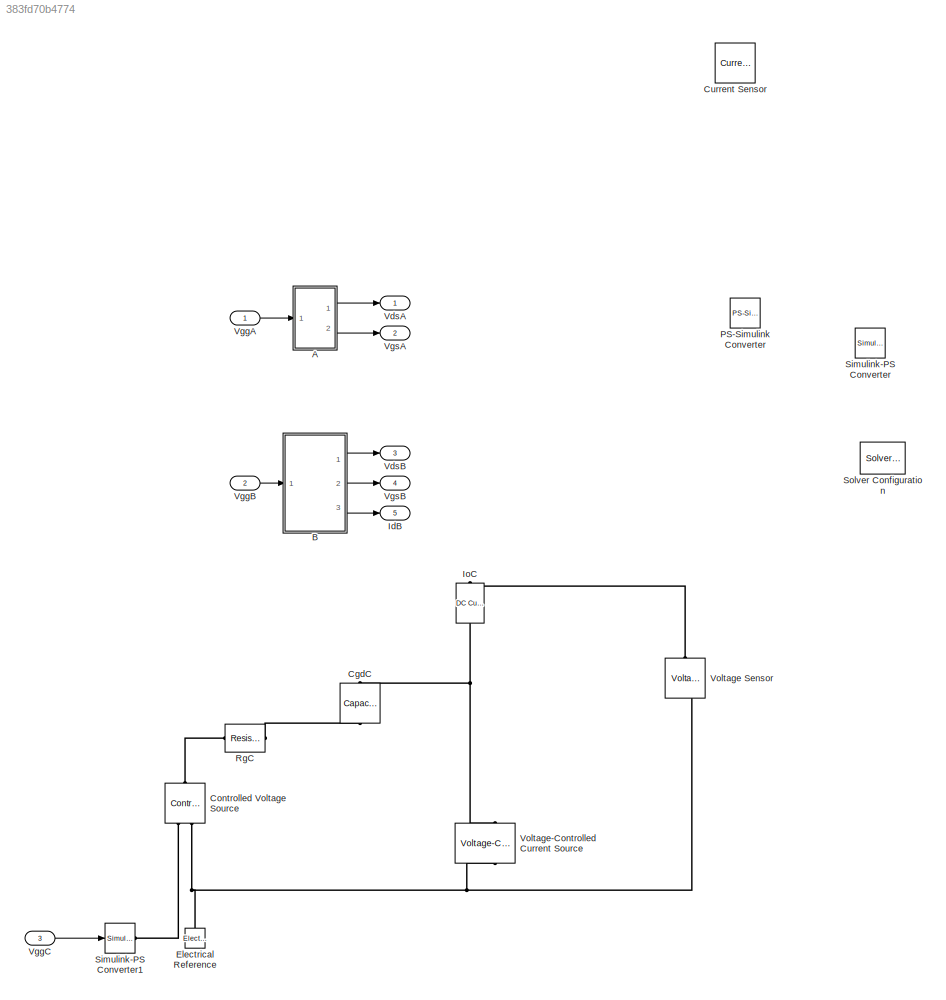
MODEL slx_383fd70b4774
KIND model
CONFIG AbsTol = auto
CONFIG FixedStep = auto
CONFIG MaxStep = auto
CONFIG MinStep = auto
CONFIG RelTol = 1e-3
CONFIG SampleTimeConstraint = Unconstrained
CONFIG Solver = VariableStepAuto
CONFIG SolverMode = Auto
CONFIG SolverName = VariableStepAuto
CONFIG StartTime = 0.0
CONFIG StopTime = 10.0
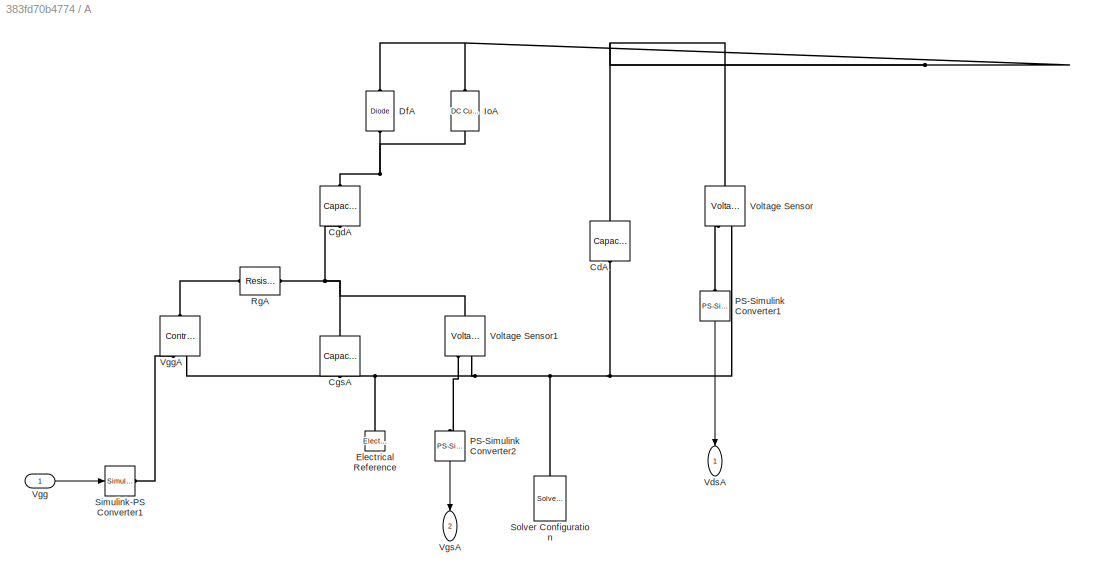
BLOCK [SubSystem] A
  Ports = [1, 2]
  RequestExecContextInheritance = off
  Variant = off
BLOCK [Reference] A/CdA  REF=fl_lib/Electrical/Electrical Elements/Capacitor
  Ports = [0, 0, 0, 0, 0, 1, 1]
  SourceBlock = fl_lib/Electrical/Electrical Elements/Capacitor
  SourceType = Capacitor
BLOCK [Reference] A/CgdA  REF=fl_lib/Electrical/Electrical Elements/Capacitor
  Ports = [0, 0, 0, 0, 0, 1, 1]
  SourceBlock = fl_lib/Electrical/Electrical Elements/Capacitor
  SourceType = Capacitor
BLOCK [Reference] A/CgsA  REF=fl_lib/Electrical/Electrical Elements/Capacitor
  Ports = [0, 0, 0, 0, 0, 1, 1]
  SourceBlock = fl_lib/Electrical/Electrical Elements/Capacitor
  SourceType = Capacitor
BLOCK [Reference] A/DfA  REF=fl_lib/Electrical/Electrical Elements/Diode
  Ports = [0, 0, 0, 0, 0, 1, 1]
  SourceBlock = fl_lib/Electrical/Electrical Elements/Diode
  SourceType = Diode
BLOCK [Reference] A/Electrical Reference  REF=fl_lib/Electrical/Electrical Elements/Electrical Reference
  Ports = [0, 0, 0, 0, 0, 1]
  SourceBlock = fl_lib/Electrical/Electrical Elements/Electrical Reference
  SourceType = Electrical Reference
BLOCK [Reference] A/IoA  REF=fl_lib/Electrical/Electrical Sources/DC Current Source
  Ports = [0, 0, 0, 0, 0, 1, 1]
  SourceBlock = fl_lib/Electrical/Electrical Sources/DC Current Source
  SourceType = DC Current Source
BLOCK [Reference] A/PS-Simulink Converter1  REF=nesl_utility/PS-Simulink
Converter
  Ports = [0, 1, 0, 0, 0, 1]
  SourceBlock = nesl_utility/PS-Simulink\nConverter
  SourceType = PS-Simulink\nConverter
BLOCK [Reference] A/PS-Simulink Converter2  REF=nesl_utility/PS-Simulink
Converter
  Ports = [0, 1, 0, 0, 0, 1]
  SourceBlock = nesl_utility/PS-Simulink\nConverter
  SourceType = PS-Simulink\nConverter
BLOCK [Reference] A/RgA  REF=fl_lib/Electrical/Electrical Elements/Resistor
  Ports = [0, 0, 0, 0, 0, 1, 1]
  SourceBlock = fl_lib/Electrical/Electrical Elements/Resistor
  SourceType = Resistor
BLOCK [Reference] A/Simulink-PS Converter1  REF=nesl_utility/Simulink-PS
Converter
  Ports = [1, 0, 0, 0, 0, 0, 1]
  SourceBlock = nesl_utility/Simulink-PS\nConverter
  SourceType = Simulink-PS\nConverter
BLOCK [Reference] A/Solver Configuration  REF=nesl_utility/Solver
Configuration
  Ports = [0, 0, 0, 0, 0, 0, 1]
  SourceBlock = nesl_utility/Solver\nConfiguration
  SourceType = Solver\nConfiguration
BLOCK [Outport] A/VdsA
  IconDisplay = Port number
BLOCK [Inport] A/Vgg
  IconDisplay = Port number
BLOCK [Reference] A/VggA  REF=fl_lib/Electrical/Electrical Sources/Controlled Voltage
Source
  Ports = [0, 0, 0, 0, 0, 1, 2]
  SourceBlock = fl_lib/Electrical/Electrical Sources/Controlled Voltage\nSource
  SourceType = Controlled Voltage\nSource
BLOCK [Outport] A/VgsA
  IconDisplay = Port number
  Port = 2
BLOCK [Reference] A/Voltage Sensor  REF=fl_lib/Electrical/Electrical Sensors/Voltage Sensor
  Ports = [0, 0, 0, 0, 0, 1, 2]
  SourceBlock = fl_lib/Electrical/Electrical Sensors/Voltage Sensor
  SourceType = Voltage Sensor
BLOCK [Reference] A/Voltage Sensor1  REF=fl_lib/Electrical/Electrical Sensors/Voltage Sensor
  Ports = [0, 0, 0, 0, 0, 1, 2]
  SourceBlock = fl_lib/Electrical/Electrical Sensors/Voltage Sensor
  SourceType = Voltage Sensor
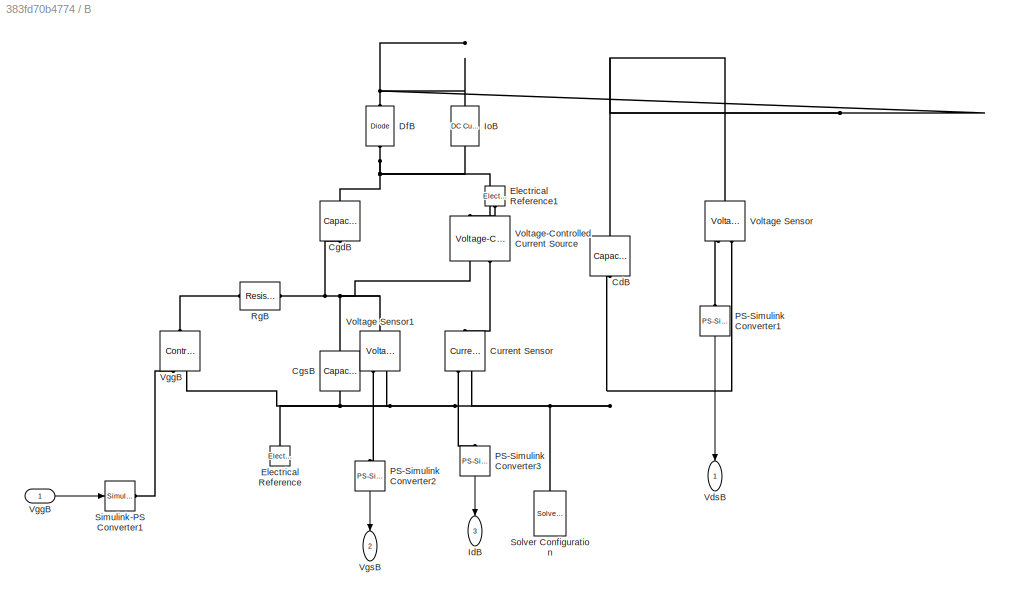
BLOCK [SubSystem] B
  Ports = [1, 3]
  RequestExecContextInheritance = off
  Variant = off
BLOCK [Reference] B/CdB  REF=fl_lib/Electrical/Electrical Elements/Capacitor
  Ports = [0, 0, 0, 0, 0, 1, 1]
  SourceBlock = fl_lib/Electrical/Electrical Elements/Capacitor
  SourceType = Capacitor
BLOCK [Reference] B/CgdB  REF=fl_lib/Electrical/Electrical Elements/Capacitor
  Ports = [0, 0, 0, 0, 0, 1, 1]
  SourceBlock = fl_lib/Electrical/Electrical Elements/Capacitor
  SourceType = Capacitor
BLOCK [Reference] B/CgsB  REF=fl_lib/Electrical/Electrical Elements/Capacitor
  Ports = [0, 0, 0, 0, 0, 1, 1]
  SourceBlock = fl_lib/Electrical/Electrical Elements/Capacitor
  SourceType = Capacitor
BLOCK [Reference] B/Current Sensor  REF=fl_lib/Electrical/Electrical Sensors/Current Sensor
  Ports = [0, 0, 0, 0, 0, 1, 2]
  SourceBlock = fl_lib/Electrical/Electrical Sensors/Current Sensor
  SourceType = Current Sensor
BLOCK [Reference] B/DfB  REF=fl_lib/Electrical/Electrical Elements/Diode
  Ports = [0, 0, 0, 0, 0, 1, 1]
  SourceBlock = fl_lib/Electrical/Electrical Elements/Diode
  SourceType = Diode
BLOCK [Reference] B/Electrical Reference  REF=fl_lib/Electrical/Electrical Elements/Electrical Reference
  Ports = [0, 0, 0, 0, 0, 1]
  SourceBlock = fl_lib/Electrical/Electrical Elements/Electrical Reference
  SourceType = Electrical Reference
BLOCK [Reference] B/Electrical Reference1  REF=fl_lib/Electrical/Electrical Elements/Electrical Reference
  Ports = [0, 0, 0, 0, 0, 1]
  SourceBlock = fl_lib/Electrical/Electrical Elements/Electrical Reference
  SourceType = Electrical Reference
BLOCK [Outport] B/IdB
  IconDisplay = Port number
  Port = 3
BLOCK [Reference] B/IoB  REF=fl_lib/Electrical/Electrical Sources/DC Current Source
  Ports = [0, 0, 0, 0, 0, 1, 1]
  SourceBlock = fl_lib/Electrical/Electrical Sources/DC Current Source
  SourceType = DC Current Source
BLOCK [Reference] B/PS-Simulink Converter1  REF=nesl_utility/PS-Simulink
Converter
  Ports = [0, 1, 0, 0, 0, 1]
  SourceBlock = nesl_utility/PS-Simulink\nConverter
  SourceType = PS-Simulink\nConverter
BLOCK [Reference] B/PS-Simulink Converter2  REF=nesl_utility/PS-Simulink
Converter
  Ports = [0, 1, 0, 0, 0, 1]
  SourceBlock = nesl_utility/PS-Simulink\nConverter
  SourceType = PS-Simulink\nConverter
BLOCK [Reference] B/PS-Simulink Converter3  REF=nesl_utility/PS-Simulink
Converter
  Ports = [0, 1, 0, 0, 0, 1]
  SourceBlock = nesl_utility/PS-Simulink\nConverter
  SourceType = PS-Simulink\nConverter
BLOCK [Reference] B/RgB  REF=fl_lib/Electrical/Electrical Elements/Resistor
  Ports = [0, 0, 0, 0, 0, 1, 1]
  SourceBlock = fl_lib/Electrical/Electrical Elements/Resistor
  SourceType = Resistor
BLOCK [Reference] B/Simulink-PS Converter1  REF=nesl_utility/Simulink-PS
Converter
  Ports = [1, 0, 0, 0, 0, 0, 1]
  SourceBlock = nesl_utility/Simulink-PS\nConverter
  SourceType = Simulink-PS\nConverter
BLOCK [Reference] B/Solver Configuration  REF=nesl_utility/Solver
Configuration
  Ports = [0, 0, 0, 0, 0, 0, 1]
  SourceBlock = nesl_utility/Solver\nConfiguration
  SourceType = Solver\nConfiguration
BLOCK [Outport] B/VdsB
  IconDisplay = Port number
BLOCK [Reference] B/VggB  REF=fl_lib/Electrical/Electrical Sources/Controlled Voltage
Source
  Ports = [0, 0, 0, 0, 0, 1, 2]
  SourceBlock = fl_lib/Electrical/Electrical Sources/Controlled Voltage\nSource
  SourceType = Controlled Voltage\nSource
BLOCK [Inport] B/VggB 
  IconDisplay = Port number
BLOCK [Outport] B/VgsB
  IconDisplay = Port number
  Port = 2
BLOCK [Reference] B/Voltage Sensor  REF=fl_lib/Electrical/Electrical Sensors/Voltage Sensor
  Ports = [0, 0, 0, 0, 0, 1, 2]
  SourceBlock = fl_lib/Electrical/Electrical Sensors/Voltage Sensor
  SourceType = Voltage Sensor
BLOCK [Reference] B/Voltage Sensor1  REF=fl_lib/Electrical/Electrical Sensors/Voltage Sensor
  Ports = [0, 0, 0, 0, 0, 1, 2]
  SourceBlock = fl_lib/Electrical/Electrical Sensors/Voltage Sensor
  SourceType = Voltage Sensor
BLOCK [Reference] B/Voltage-Controlled Current Source  REF=fl_lib/Electrical/Electrical Sources/Voltage-Controlled
Current Source
  Ports = [0, 0, 0, 0, 0, 2, 2]
  SourceBlock = fl_lib/Electrical/Electrical Sources/Voltage-Controlled\nCurrent Source
  SourceType = Voltage-Controlled\nCurrent Source
BLOCK [Reference] CgdC  REF=fl_lib/Electrical/Electrical Elements/Capacitor
  Ports = [0, 0, 0, 0, 0, 1, 1]
  SourceBlock = fl_lib/Electrical/Electrical Elements/Capacitor
  SourceType = Capacitor
BLOCK [Reference] Controlled Voltage Source  REF=fl_lib/Electrical/Electrical Sources/Controlled Voltage
Source
  Ports = [0, 0, 0, 0, 0, 1, 2]
  SourceBlock = fl_lib/Electrical/Electrical Sources/Controlled Voltage\nSource
  SourceType = Controlled Voltage\nSource
BLOCK [Reference] Current Sensor  REF=fl_lib/Electrical/Electrical Sensors/Current Sensor
  Ports = [0, 0, 0, 0, 0, 1, 2]
  SourceBlock = fl_lib/Electrical/Electrical Sensors/Current Sensor
  SourceType = Current Sensor
BLOCK [Reference] Electrical Reference  REF=fl_lib/Electrical/Electrical Elements/Electrical Reference
  Ports = [0, 0, 0, 0, 0, 1]
  SourceBlock = fl_lib/Electrical/Electrical Elements/Electrical Reference
  SourceType = Electrical Reference
BLOCK [Outport] IdB
  IconDisplay = Port number
  Port = 5
BLOCK [Reference] IoC  REF=fl_lib/Electrical/Electrical Sources/DC Current Source
  Ports = [0, 0, 0, 0, 0, 1, 1]
  SourceBlock = fl_lib/Electrical/Electrical Sources/DC Current Source
  SourceType = DC Current Source
BLOCK [Reference] PS-Simulink Converter  REF=nesl_utility/PS-Simulink
Converter
  Ports = [0, 1, 0, 0, 0, 1]
  SourceBlock = nesl_utility/PS-Simulink\nConverter
  SourceType = PS-Simulink\nConverter
BLOCK [Reference] RgC  REF=fl_lib/Electrical/Electrical Elements/Resistor
  Ports = [0, 0, 0, 0, 0, 1, 1]
  SourceBlock = fl_lib/Electrical/Electrical Elements/Resistor
  SourceType = Resistor
BLOCK [Reference] Simulink-PS Converter  REF=nesl_utility/Simulink-PS
Converter
  Ports = [1, 0, 0, 0, 0, 0, 1]
  SourceBlock = nesl_utility/Simulink-PS\nConverter
  SourceType = Simulink-PS\nConverter
BLOCK [Reference] Simulink-PS Converter1  REF=nesl_utility/Simulink-PS
Converter
  Ports = [1, 0, 0, 0, 0, 0, 1]
  SourceBlock = nesl_utility/Simulink-PS\nConverter
  SourceType = Simulink-PS\nConverter
BLOCK [Reference] Solver Configuration  REF=nesl_utility/Solver
Configuration
  Ports = [0, 0, 0, 0, 0, 0, 1]
  SourceBlock = nesl_utility/Solver\nConfiguration
  SourceType = Solver\nConfiguration
BLOCK [Outport] VdsA
  IconDisplay = Port number
BLOCK [Outport] VdsB
  IconDisplay = Port number
  Port = 3
BLOCK [Inport] VggA
  IconDisplay = Port number
BLOCK [Inport] VggB
  IconDisplay = Port number
  Port = 2
BLOCK [Inport] VggC
  IconDisplay = Port number
  Port = 3
BLOCK [Outport] VgsA
  IconDisplay = Port number
  Port = 2
BLOCK [Outport] VgsB
  IconDisplay = Port number
  Port = 4
BLOCK [Reference] Voltage Sensor  REF=fl_lib/Electrical/Electrical Sensors/Voltage Sensor
  Ports = [0, 0, 0, 0, 0, 1, 2]
  SourceBlock = fl_lib/Electrical/Electrical Sensors/Voltage Sensor
  SourceType = Voltage Sensor
BLOCK [Reference] Voltage-Controlled Current Source  REF=fl_lib/Electrical/Electrical Sources/Voltage-Controlled
Current Source
  Ports = [0, 0, 0, 0, 0, 2, 2]
  SourceBlock = fl_lib/Electrical/Electrical Sources/Voltage-Controlled\nCurrent Source
  SourceType = Voltage-Controlled\nCurrent Source
LINE A/PS-Simulink Converter1:1 -> A/VdsA:1
LINE A/PS-Simulink Converter2:1 -> A/VgsA:1
LINE A/Vgg:1 -> A/Simulink-PS Converter1:1
LINE A:1 -> VdsA:1
LINE A:2 -> VgsA:1
LINE B/PS-Simulink Converter1:1 -> B/VdsB:1
LINE B/PS-Simulink Converter2:1 -> B/VgsB:1
LINE B/PS-Simulink Converter3:1 -> B/IdB:1
LINE B/VggB :1 -> B/Simulink-PS Converter1:1
LINE B:1 -> VdsB:1
LINE B:2 -> VgsB:1
LINE B:3 -> IdB:1
LINE VggA:1 -> A:1
LINE VggB:1 -> B:1
LINE VggC:1 -> Simulink-PS Converter1:1
PNET net1: A/CdA:LConn1 -- A/DfA:RConn1 -- A/IoA:RConn1 -- A/Voltage Sensor:LConn1
PNET net2: A/CdA:RConn1 -- A/CgsA:RConn1 -- A/Electrical Reference:LConn1 -- A/Solver Configuration:RConn1 -- A/VggA:RConn2 -- A/Voltage Sensor1:RConn2 -- A/Voltage Sensor:RConn2
PNET net3: A/CgdA:LConn1 -- A/DfA:LConn1 -- A/IoA:LConn1
PNET net4: A/CgdA:RConn1 -- A/CgsA:LConn1 -- A/RgA:RConn1 -- A/Voltage Sensor1:LConn1
PLINE A/PS-Simulink Converter1:LConn1 -- A/Voltage Sensor:RConn1
PLINE A/PS-Simulink Converter2:LConn1 -- A/Voltage Sensor1:RConn1
PLINE A/RgA:LConn1 -- A/VggA:LConn1
PLINE A/Simulink-PS Converter1:RConn1 -- A/VggA:RConn1
PNET net5: B/CdB:LConn1 -- B/DfB:RConn1 -- B/IoB:RConn1 -- B/Voltage Sensor:LConn1
PNET net6: B/CdB:RConn1 -- B/CgsB:RConn1 -- B/Current Sensor:RConn2 -- B/Electrical Reference:LConn1 -- B/Solver Configuration:RConn1 -- B/VggB:RConn2 -- B/Voltage Sensor1:RConn2 -- B/Voltage Sensor:RConn2
PNET net7: B/CgdB:LConn1 -- B/DfB:LConn1 -- B/IoB:LConn1 -- B/Voltage-Controlled Current Source:RConn2
PNET net8: B/CgdB:RConn1 -- B/CgsB:LConn1 -- B/RgB:RConn1 -- B/Voltage Sensor1:LConn1 -- B/Voltage-Controlled Current Source:LConn1
PLINE B/Current Sensor:LConn1 -- B/Voltage-Controlled Current Source:LConn2
PLINE B/Current Sensor:RConn1 -- B/PS-Simulink Converter3:LConn1
PLINE B/Electrical Reference1:LConn1 -- B/Voltage-Controlled Current Source:RConn1
PLINE B/PS-Simulink Converter1:LConn1 -- B/Voltage Sensor:RConn1
PLINE B/PS-Simulink Converter2:LConn1 -- B/Voltage Sensor1:RConn1
PLINE B/RgB:LConn1 -- B/VggB:LConn1
PLINE B/Simulink-PS Converter1:RConn1 -- B/VggB:RConn1
PNET net9: CgdC:LConn1 -- IoC:LConn1 -- Voltage-Controlled Current Source:RConn2
PLINE CgdC:RConn1 -- RgC:RConn1
PLINE Controlled Voltage Source:LConn1 -- RgC:LConn1
PLINE Controlled Voltage Source:RConn1 -- Simulink-PS Converter1:RConn1
PNET net10: Controlled Voltage Source:RConn2 -- Electrical Reference:LConn1 -- Voltage Sensor:RConn2 -- Voltage-Controlled Current Source:LConn2
PLINE IoC:RConn1 -- Voltage Sensor:LConn1
note: PNET lines group multi-terminal physical nets as a canonical sorted terminal list (undirected conserving connections); 2-terminal nets keep the pairwise PLINE form
